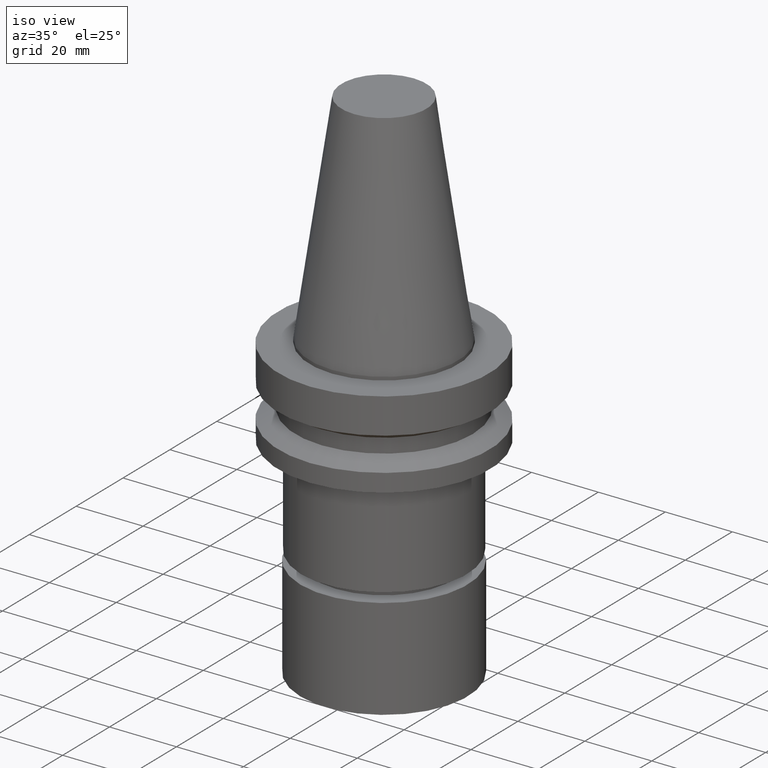
[diagram: clean part render]
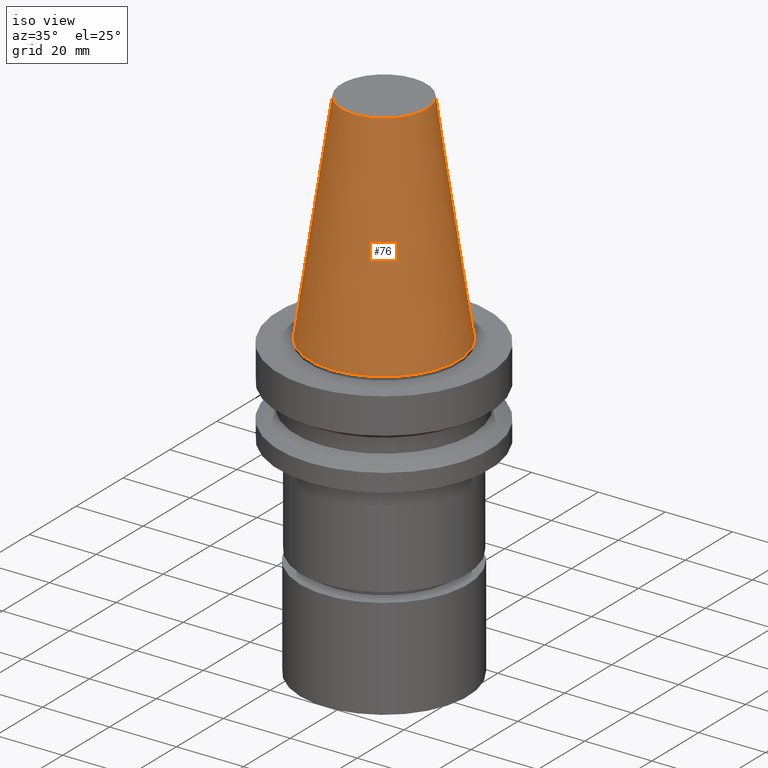
[diagram: tour spotlight — one face highlighted and labeled with its STEP entity id]
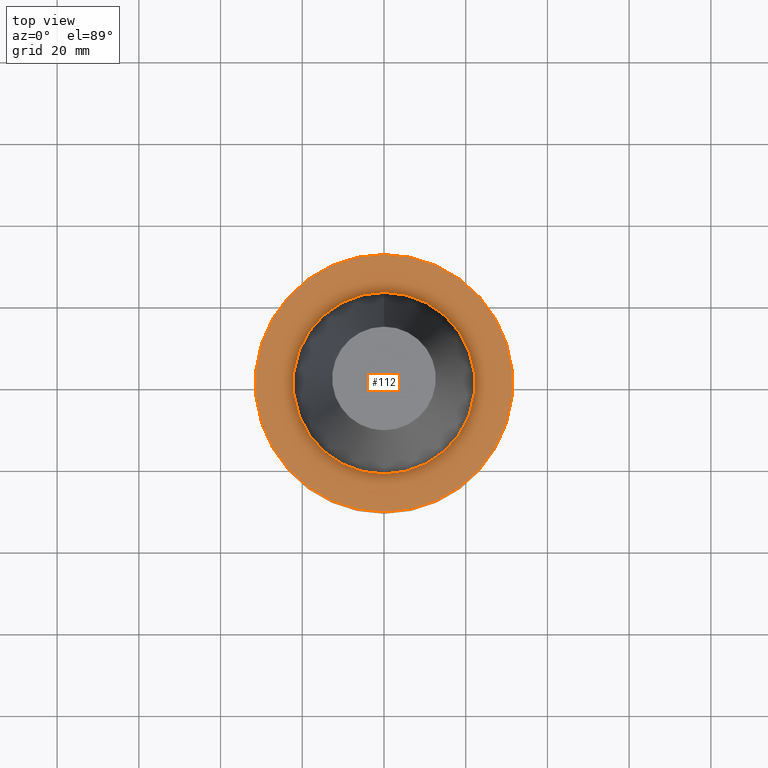
[diagram: tour spotlight — one face highlighted and labeled with its STEP entity id]
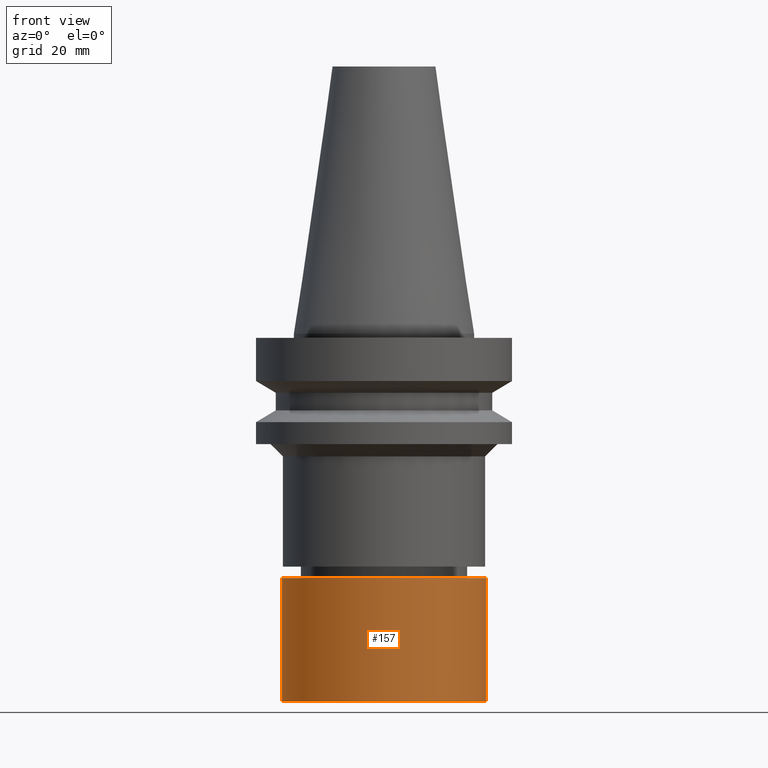
[diagram: tour spotlight — one face highlighted and labeled with its STEP entity id]
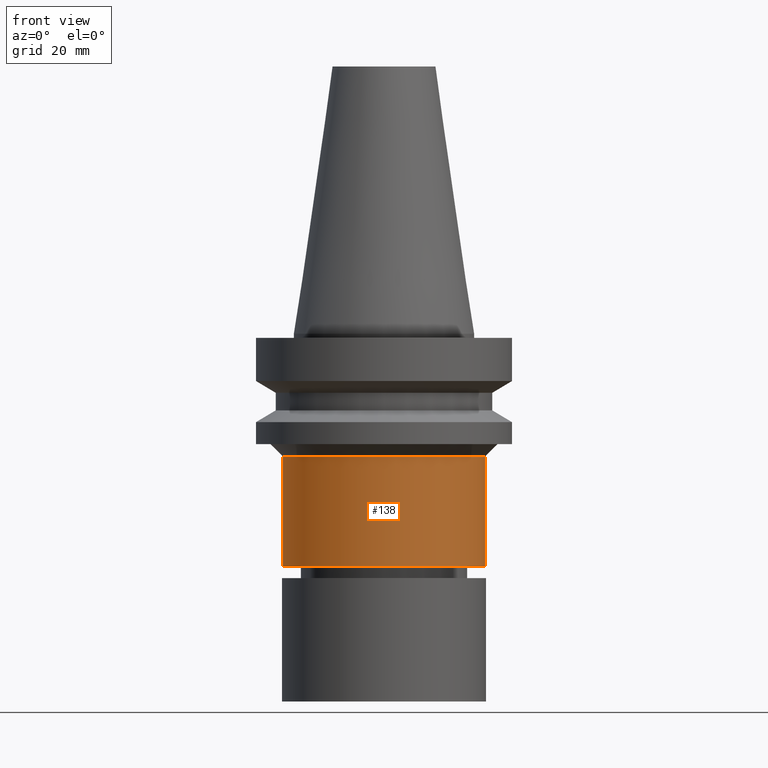
[diagram: tour spotlight — one face highlighted and labeled with its STEP entity id]
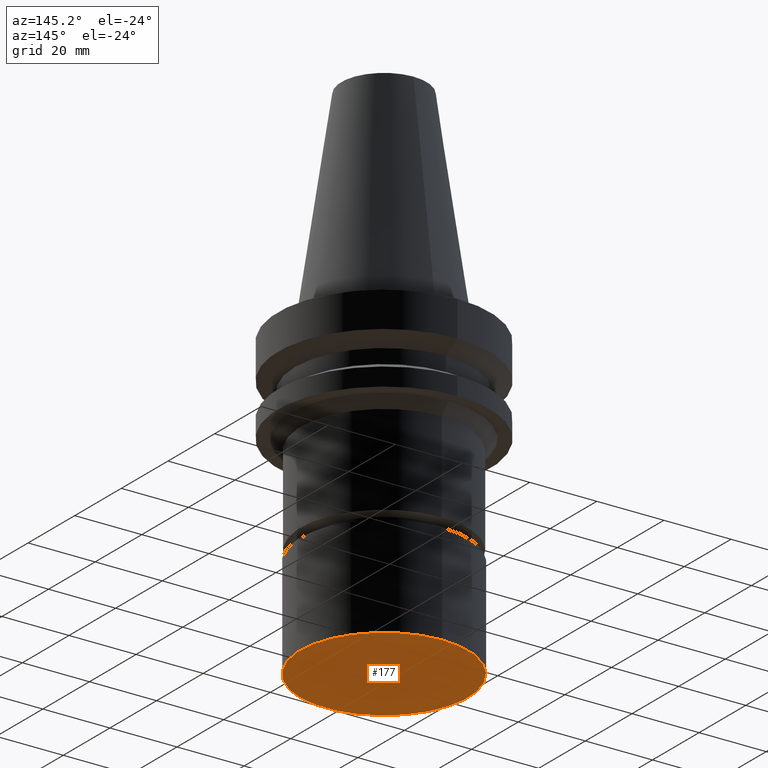
[diagram: tour spotlight — one face highlighted and labeled with its STEP entity id]
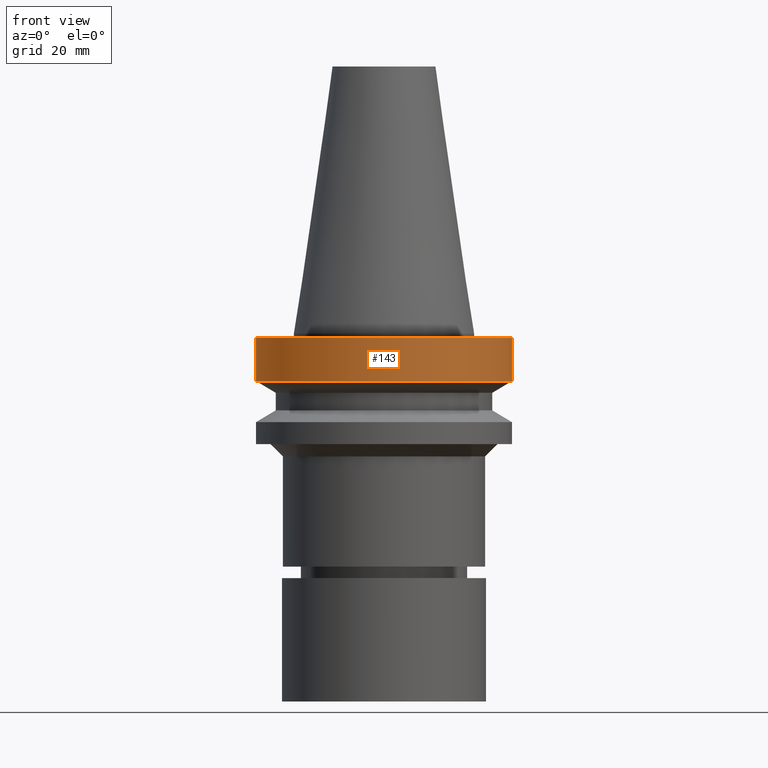
[diagram: tour spotlight — one face highlighted and labeled with its STEP entity id]
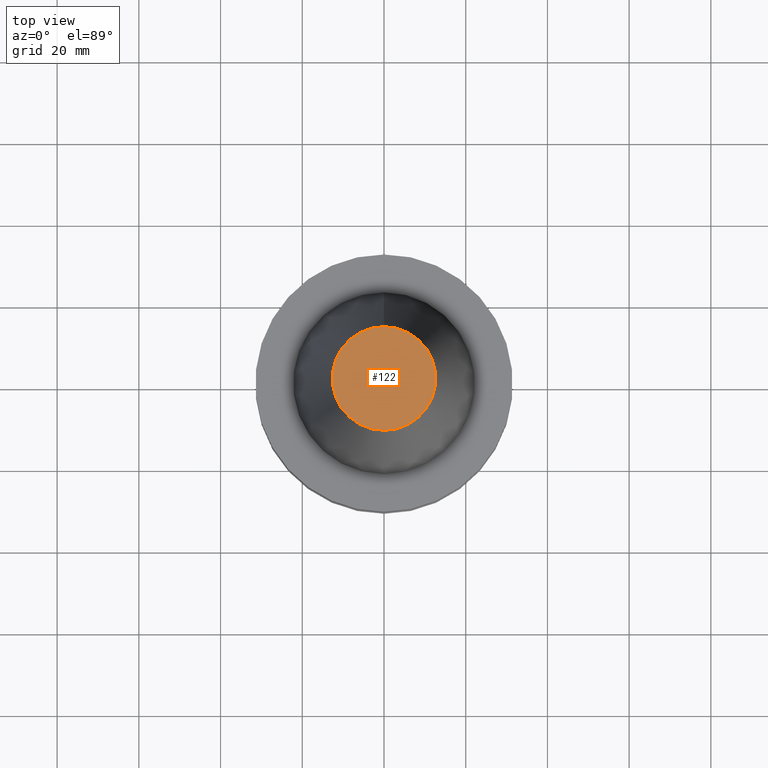
[diagram: tour spotlight — one face highlighted and labeled with its STEP entity id]
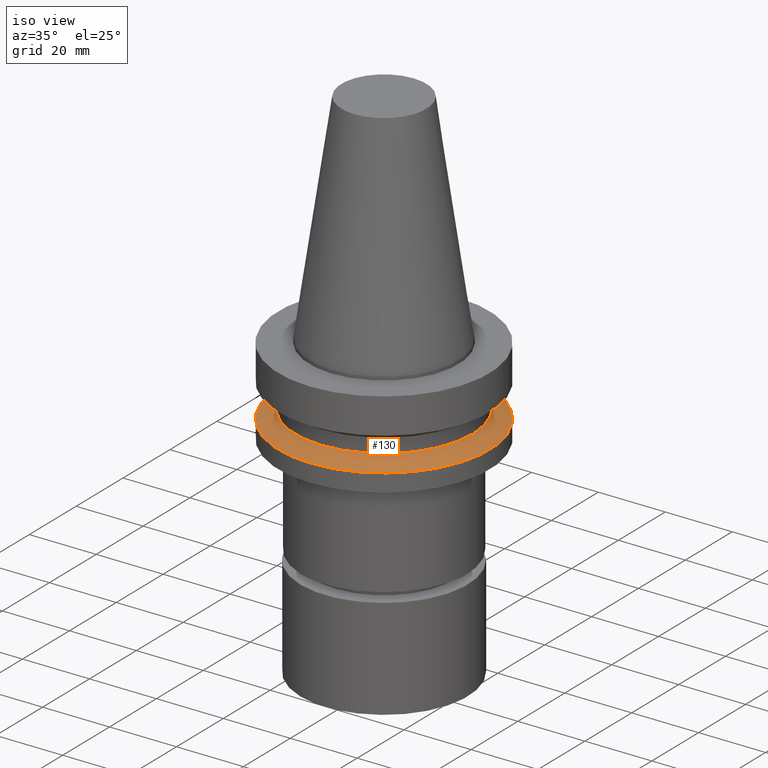
[diagram: tour spotlight — one face highlighted and labeled with its STEP entity id]
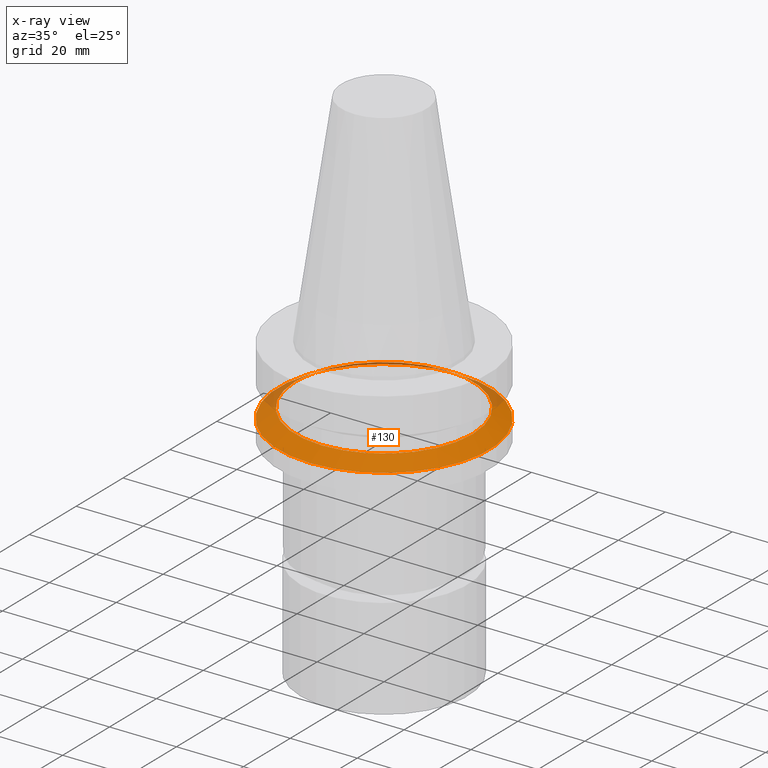
[diagram: x-ray of the same camera — body ghosted, this tour face saturated]
A machine part: a face-by-face anatomy tour. The part has 21 B-rep faces; the first image is the clean iso view, then the 8 largest visible faces are spotlighted one at a time (largest first), each with its STEP entity span.

Face 1 — iso view, entity #76. In plain terms, the highlighted conical surface has half-angle 8.297 deg.
Definition (entity closure, byte-faithful):
#76=ADVANCED_FACE('Unnamed[1]',(#202,#203),#204,.T.);
#95=EDGE_CURVE('Unnamed[1]',#233,#233,#234,.T.);
#166=EDGE_CURVE('Unnamed[1]',#342,#342,#343,.T.);
#202=FACE_BOUND('',#378,.T.);
#203=FACE_BOUND('',#379,.T.);
#204=CONICAL_SURFACE('',#380,17.4562500000001,0.144812498238936);
#233=VERTEX_POINT('',#417);
#234=CIRCLE('',#418,12.6875000000001);
#342=VERTEX_POINT('',#553);
#343=CIRCLE('',#554,22.225);
#378=EDGE_LOOP('',(#581));
#379=EDGE_LOOP('',(#582));
#380=AXIS2_PLACEMENT_3D('',#583,#584,#585);
#417=CARTESIAN_POINT('',(-4.00459503321185E-015,12.6875000000002,65.4000000000001));
#418=AXIS2_PLACEMENT_3D('',#616,#617,#618);
#553=CARTESIAN_POINT('',(1.71319921032766E-029,22.2250000000001,-2.8153873565375E-013));
#554=AXIS2_PLACEMENT_3D('',#737,#738,#739);
#581=ORIENTED_EDGE('',*,*,#166,.F.);
#582=ORIENTED_EDGE('',*,*,#95,.T.);
#583=CARTESIAN_POINT('',(-2.00229751660592E-015,6.88785929402024E-014,32.6999999999999));
#584=DIRECTION('',(6.12323399573677E-017,-2.45986715532914E-016,-1.0));
#585=DIRECTION('',(1.02351894597366E-032,1.0,-2.45986715532914E-016));
#616=CARTESIAN_POINT('',(-4.00459503321185E-015,7.69223585381286E-014,65.4000000000001));
#617=DIRECTION('',(6.12323399573677E-017,-2.45986715532932E-016,-1.0));
#618=DIRECTION('',(1.02351894597402E-032,1.0,-2.45986715532932E-016));
#737=CARTESIAN_POINT('',(1.65331138531142E-029,6.08348273422762E-014,-2.70006239588838E-013));
#738=DIRECTION('',(6.12323399573677E-017,-2.45986715532903E-016,-1.0));
#739=DIRECTION('',(1.02351894597385E-032,1.0,-2.45986715532903E-016));

Face 2 — top view, entity #112. In plain terms, the highlighted planar face has unit normal (-0, -0, 1).
Definition (entity closure, byte-faithful):
#112=ADVANCED_FACE('Unnamed[1]',(#258,#259),#260,.T.);
#140=EDGE_CURVE('Unnamed[1]',#300,#300,#301,.T.);
#174=EDGE_CURVE('Unnamed[1]',#355,#355,#356,.T.);
#258=FACE_OUTER_BOUND('',#449,.T.);
#259=FACE_BOUND('',#450,.T.);
#260=PLANE('',#451);
#300=VERTEX_POINT('',#501);
#301=CIRCLE('',#502,22.225);
#355=VERTEX_POINT('',#569);
#356=CIRCLE('',#570,31.4999999999996);
#449=EDGE_LOOP('',(#643));
#450=EDGE_LOOP('',(#644));
#451=AXIS2_PLACEMENT_3D('',#645,#646,#647);
#501=CARTESIAN_POINT('',(6.12323399573622E-017,22.2250000000001,-0.999999999999912));
#502=AXIS2_PLACEMENT_3D('',#689,#690,#691);
#569=CARTESIAN_POINT('',(6.12323399573568E-017,31.4999999999997,-0.999999999999825));
#570=AXIS2_PLACEMENT_3D('',#752,#753,#754);
#643=ORIENTED_EDGE('',*,*,#174,.F.);
#644=ORIENTED_EDGE('',*,*,#140,.T.);
#645=CARTESIAN_POINT('',(6.12323399573595E-017,26.8624999999999,-0.999999999999869));
#646=DIRECTION('',(-6.12323399573677E-017,-9.35138060429241E-015,1.0));
#647=DIRECTION('',(5.77434068963536E-031,-1.0,-9.35138060429241E-015));
#689=CARTESIAN_POINT('',(6.12323399573616E-017,6.05888406267433E-014,-0.999999999999901));
#690=DIRECTION('',(6.12323399573677E-017,-2.45986715532903E-016,-1.0));
#691=DIRECTION('',(1.02351894597385E-032,1.0,-2.45986715532903E-016));
#752=CARTESIAN_POINT('',(6.12323399573563E-017,6.05888406267434E-014,-0.999999999999815));
#753=DIRECTION('',(6.12323399573677E-017,-2.45986715532951E-016,-1.0));
#754=DIRECTION('',(1.02351894597416E-032,1.0,-2.45986715532951E-016));

Face 3 — front view, entity #157. In plain terms, the highlighted cylindrical surface (bore or boss wall) has radius 25 mm, axis along (0, -0, -1).
Definition (entity closure, byte-faithful):
#90=EDGE_CURVE('Unnamed[1]',#225,#225,#226,.T.);
#109=EDGE_CURVE('Unnamed[1]',#254,#254,#255,.T.);
#157=ADVANCED_FACE('Unnamed[1]',(#327,#328),#329,.T.);
#225=VERTEX_POINT('',#407);
#226=CIRCLE('',#408,24.9999999999999);
#254=VERTEX_POINT('',#444);
#255=CIRCLE('',#445,24.9999999999999);
#327=FACE_BOUND('',#534,.T.);
#328=FACE_BOUND('',#535,.T.);
#329=CYLINDRICAL_SURFACE('',#536,24.9999999999999);
#407=CARTESIAN_POINT('',(5.51091059616309E-015,25.0,-90.0));
#408=AXIS2_PLACEMENT_3D('',#607,#608,#609);
#444=CARTESIAN_POINT('',(3.66169392945059E-015,25.0,-59.8));
#445=AXIS2_PLACEMENT_3D('',#639,#640,#641);
#534=EDGE_LOOP('',(#720));
#535=EDGE_LOOP('',(#721));
#536=AXIS2_PLACEMENT_3D('',#722,#723,#724);
#607=CARTESIAN_POINT('',(5.51091059616309E-015,3.86960229443143E-014,-90.0));
#608=DIRECTION('',(6.12323399573677E-017,-2.45986715532911E-016,-1.0));
#609=DIRECTION('',(1.02351894597385E-032,1.0,-2.45986715532911E-016));
#639=CARTESIAN_POINT('',(3.66169392945059E-015,4.61248217534082E-014,-59.8));
#640=DIRECTION('',(6.12323399573677E-017,-2.45986715532911E-016,-1.0));
#641=DIRECTION('',(1.02351894597385E-032,1.0,-2.45986715532911E-016));
#720=ORIENTED_EDGE('',*,*,#90,.F.);
#721=ORIENTED_EDGE('',*,*,#109,.T.);
#722=CARTESIAN_POINT('',(4.58630226280684E-015,4.24104223488612E-014,-74.9));
#723=DIRECTION('',(6.12323399573677E-017,-2.45986715532911E-016,-1.0));
#724=DIRECTION('',(1.02351894597385E-032,1.0,-2.45986715532911E-016));

Face 4 — front view, entity #138. In plain terms, the highlighted cylindrical surface (bore or boss wall) has radius 24.8 mm, axis along (0, -0, -1).
Definition (entity closure, byte-faithful):
#119=EDGE_CURVE('Unnamed[1]',#269,#269,#270,.T.);
#127=EDGE_CURVE('Unnamed[1]',#279,#279,#280,.T.);
#138=ADVANCED_FACE('Unnamed[1]',(#296,#297),#298,.T.);
#269=VERTEX_POINT('',#463);
#270=CIRCLE('',#464,24.8000000000002);
#279=VERTEX_POINT('',#475);
#280=CIRCLE('',#476,24.7999999999998);
#296=FACE_BOUND('',#496,.T.);
#297=FACE_BOUND('',#497,.T.);
#298=CYLINDRICAL_SURFACE('',#498,24.8);
#463=CARTESIAN_POINT('',(3.49025302591327E-015,24.8000000000003,-57.0001575694041));
#464=AXIS2_PLACEMENT_3D('',#656,#657,#658);
#475=CARTESIAN_POINT('',(1.83697045278272E-015,24.7999999999998,-30.0000041491423));
#476=AXIS2_PLACEMENT_3D('',#665,#666,#667);
#496=EDGE_LOOP('',(#684));
#497=EDGE_LOOP('',(#685));
#498=AXIS2_PLACEMENT_3D('',#686,#687,#688);
#656=CARTESIAN_POINT('',(3.49025302591327E-015,4.68135457969201E-014,-57.0001575694041));
#657=DIRECTION('',(6.12323399573677E-017,-2.45986715532901E-016,-1.0));
#658=DIRECTION('',(1.02351894597315E-032,1.0,-2.45986715532901E-016));
#665=CARTESIAN_POINT('',(1.83697045278272E-015,5.3455224855655E-014,-30.0000041491423));
#666=DIRECTION('',(6.12323399573677E-017,-2.45986715532905E-016,-1.0));
#667=DIRECTION('',(1.02351894597389E-032,1.0,-2.45986715532905E-016));
#684=ORIENTED_EDGE('',*,*,#119,.F.);
#685=ORIENTED_EDGE('',*,*,#127,.T.);
#686=CARTESIAN_POINT('',(2.663611739348E-015,5.01343853262876E-014,-43.5000808592732));
#687=DIRECTION('',(6.12323399573677E-017,-2.45986715532903E-016,-1.0));
#688=DIRECTION('',(1.02351894597389E-032,1.0,-2.45986715532903E-016));

Face 5 — auxiliary view, entity #177. In plain terms, the highlighted planar face has unit normal (0, -0, -1).
Definition (entity closure, byte-faithful):
#90=EDGE_CURVE('Unnamed[1]',#225,#225,#226,.T.);
#177=ADVANCED_FACE('Unnamed[1]',(#359),#360,.T.);
#225=VERTEX_POINT('',#407);
#226=CIRCLE('',#408,24.9999999999999);
#359=FACE_OUTER_BOUND('',#574,.T.);
#360=PLANE('',#575);
#407=CARTESIAN_POINT('',(5.51091059616309E-015,25.0,-90.0));
#408=AXIS2_PLACEMENT_3D('',#607,#608,#609);
#574=EDGE_LOOP('',(#756));
#575=AXIS2_PLACEMENT_3D('',#757,#758,#759);
#607=CARTESIAN_POINT('',(5.51091059616309E-015,3.86960229443143E-014,-90.0));
#608=DIRECTION('',(6.12323399573677E-017,-2.45986715532911E-016,-1.0));
#609=DIRECTION('',(1.02351894597385E-032,1.0,-2.45986715532911E-016));
#756=ORIENTED_EDGE('',*,*,#90,.T.);
#757=CARTESIAN_POINT('',(5.51091059616309E-015,12.5,-90.0));
#758=DIRECTION('',(6.12323399573677E-017,-4.45969508693346E-016,-1.0));
#759=DIRECTION('',(2.24806038361622E-032,1.0,-4.45969508693346E-016));

Face 6 — front view, entity #143. In plain terms, the highlighted cylindrical surface (bore or boss wall) has radius 31.5 mm, axis along (0, -0, -1).
Definition (entity closure, byte-faithful):
#86=EDGE_CURVE('Unnamed[1]',#219,#219,#220,.T.);
#143=ADVANCED_FACE('Unnamed[1]',(#304,#305),#306,.T.);
#174=EDGE_CURVE('Unnamed[1]',#355,#355,#356,.T.);
#219=VERTEX_POINT('',#399);
#220=CIRCLE('',#400,31.5000000000003);
#304=FACE_BOUND('',#506,.T.);
#305=FACE_BOUND('',#507,.T.);
#306=CYLINDRICAL_SURFACE('',#508,31.5);
#355=VERTEX_POINT('',#569);
#356=CIRCLE('',#570,31.4999999999996);
#399=CARTESIAN_POINT('',(7.08182973902924E-016,31.5000000000004,-11.5655056526664));
#400=AXIS2_PLACEMENT_3D('',#601,#602,#603);
#506=EDGE_LOOP('',(#693));
#507=EDGE_LOOP('',(#694));
#508=AXIS2_PLACEMENT_3D('',#695,#696,#697);
#569=CARTESIAN_POINT('',(6.12323399573568E-017,31.4999999999997,-0.999999999999825));
#570=AXIS2_PLACEMENT_3D('',#752,#753,#754);
#601=CARTESIAN_POINT('',(7.08182973902923E-016,5.79898665932995E-014,-11.5655056526663));
#602=DIRECTION('',(6.12323399573677E-017,-2.45986715532946E-016,-1.0));
#603=DIRECTION('',(1.02351894597414E-032,1.0,-2.45986715532946E-016));
#693=ORIENTED_EDGE('',*,*,#86,.F.);
#694=ORIENTED_EDGE('',*,*,#174,.T.);
#695=CARTESIAN_POINT('',(3.8470765693014E-016,5.92893536100214E-014,-6.28275282633308));
#696=DIRECTION('',(6.12323399573677E-017,-2.45986715532948E-016,-1.0));
#697=DIRECTION('',(1.02351894597415E-032,1.0,-2.45986715532948E-016));
#752=CARTESIAN_POINT('',(6.12323399573563E-017,6.05888406267434E-014,-0.999999999999815));
#753=DIRECTION('',(6.12323399573677E-017,-2.45986715532951E-016,-1.0));
#754=DIRECTION('',(1.02351894597416E-032,1.0,-2.45986715532951E-016));

Face 7 — top view, entity #122. In plain terms, the highlighted planar face has unit normal (-0, 0, 1).
Definition (entity closure, byte-faithful):
#95=EDGE_CURVE('Unnamed[1]',#233,#233,#234,.T.);
#122=ADVANCED_FACE('Unnamed[1]',(#273),#274,.T.);
#233=VERTEX_POINT('',#417);
#234=CIRCLE('',#418,12.6875000000001);
#273=FACE_OUTER_BOUND('',#468,.T.);
#274=PLANE('',#469);
#417=CARTESIAN_POINT('',(-4.00459503321185E-015,12.6875000000002,65.4000000000001));
#418=AXIS2_PLACEMENT_3D('',#616,#617,#618);
#468=EDGE_LOOP('',(#660));
#469=AXIS2_PLACEMENT_3D('',#661,#662,#663);
#616=CARTESIAN_POINT('',(-4.00459503321185E-015,7.69223585381286E-014,65.4000000000001));
#617=DIRECTION('',(6.12323399573677E-017,-2.45986715532932E-016,-1.0));
#618=DIRECTION('',(1.02351894597402E-032,1.0,-2.45986715532932E-016));
#660=ORIENTED_EDGE('',*,*,#95,.F.);
#661=CARTESIAN_POINT('',(-4.00459503321185E-015,6.34375000000014,65.4000000000001));
#662=DIRECTION('',(-6.12323399573677E-017,9.97602686800683E-016,1.0));
#663=DIRECTION('',(-5.62583941297938E-032,-1.0,9.97602686800683E-016));

Face 8 — iso view, entity #130. An x-ray twin of the same camera follows (body ghosted, this face saturated) — the face is partly hidden behind the body. In plain terms, the highlighted conical surface has half-angle 60 deg.
Definition (entity closure, byte-faithful):
#88=EDGE_CURVE('Unnamed[1]',#222,#222,#223,.T.);
#100=EDGE_CURVE('Unnamed[1]',#240,#240,#241,.T.);
#130=ADVANCED_FACE('Unnamed[1]',(#283,#284),#285,.T.);
#222=VERTEX_POINT('',#403);
#223=CIRCLE('',#404,31.5000000000007);
#240=VERTEX_POINT('',#426);
#241=CIRCLE('',#427,26.5);
#283=FACE_BOUND('',#480,.T.);
#284=FACE_BOUND('',#481,.T.);
#285=CONICAL_SURFACE('',#482,29.0000000000003,1.04719755119651);
#403=CARTESIAN_POINT('',(1.32473071268174E-015,31.5000000000007,-21.6344943473346));
#404=AXIS2_PLACEMENT_3D('',#604,#605,#606);
#426=CARTESIAN_POINT('',(1.1479681728942E-015,26.5,-18.7477430013855));
#427=AXIS2_PLACEMENT_3D('',#624,#625,#626);
#480=EDGE_LOOP('',(#669));
#481=EDGE_LOOP('',(#670));
#482=AXIS2_PLACEMENT_3D('',#671,#672,#673);
#604=CARTESIAN_POINT('',(1.32473071268174E-015,5.55130291355601E-014,-21.6344943473346));
#605=DIRECTION('',(6.12323399573677E-017,-2.45986715532943E-016,-1.0));
#606=DIRECTION('',(1.02351894597413E-032,1.0,-2.45986715532943E-016));
#624=CARTESIAN_POINT('',(1.1479681728942E-015,5.62231316177103E-014,-18.7477430013855));
#625=DIRECTION('',(6.12323399573677E-017,-2.4598671553297E-016,-1.0));
#626=DIRECTION('',(1.02351894597447E-032,1.0,-2.4598671553297E-016));
#669=ORIENTED_EDGE('',*,*,#88,.F.);
#670=ORIENTED_EDGE('',*,*,#100,.T.);
#671=CARTESIAN_POINT('',(1.23634944278797E-015,5.58680803766352E-014,-20.1911186743601));
#672=DIRECTION('',(6.12323399573677E-017,-2.459867155329E-016,-1.0));
#673=DIRECTION('',(1.02351894597367E-032,1.0,-2.459867155329E-016));